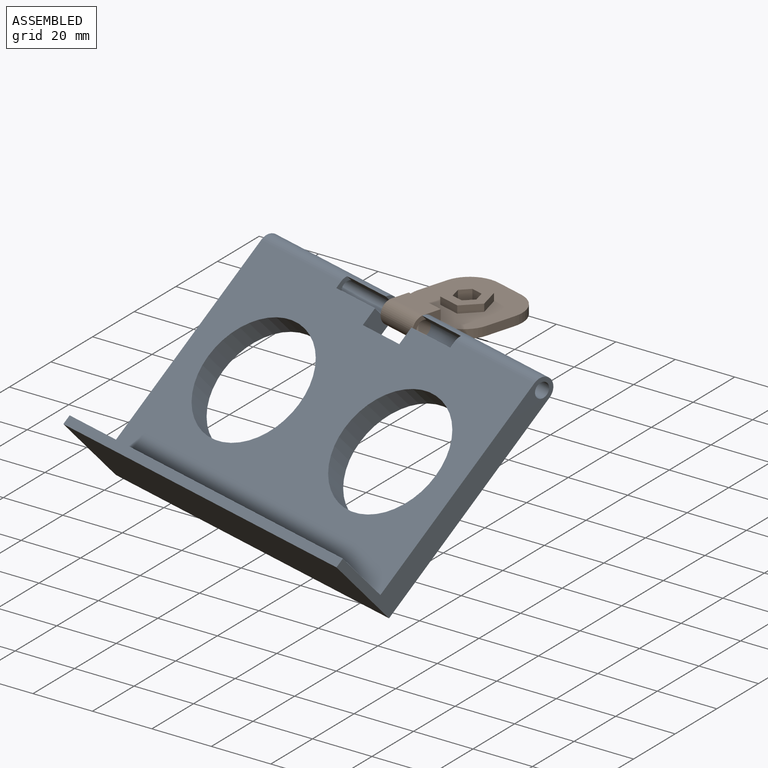
[diagram: assembled view]
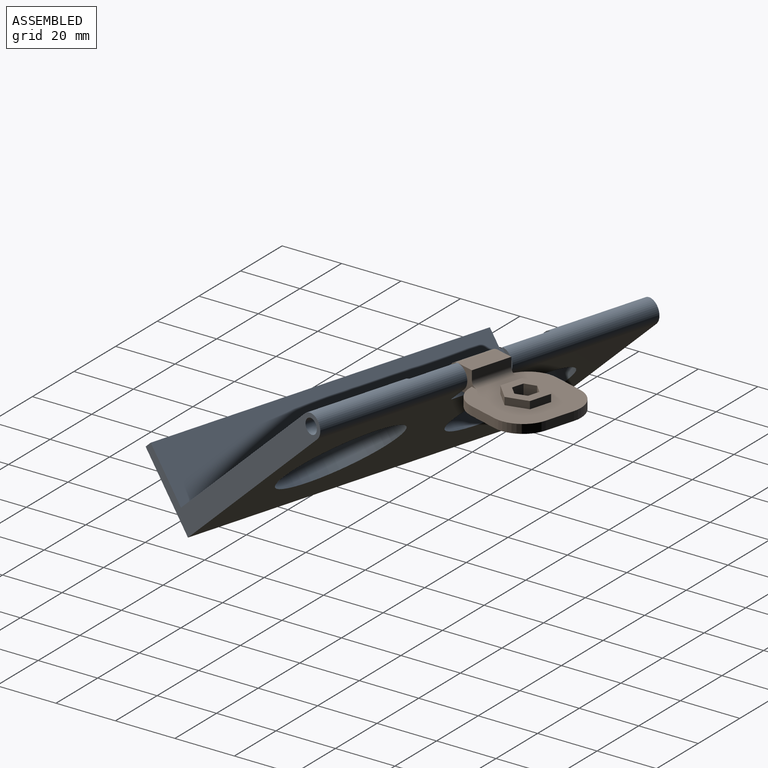
[diagram: assembled view, second angle]
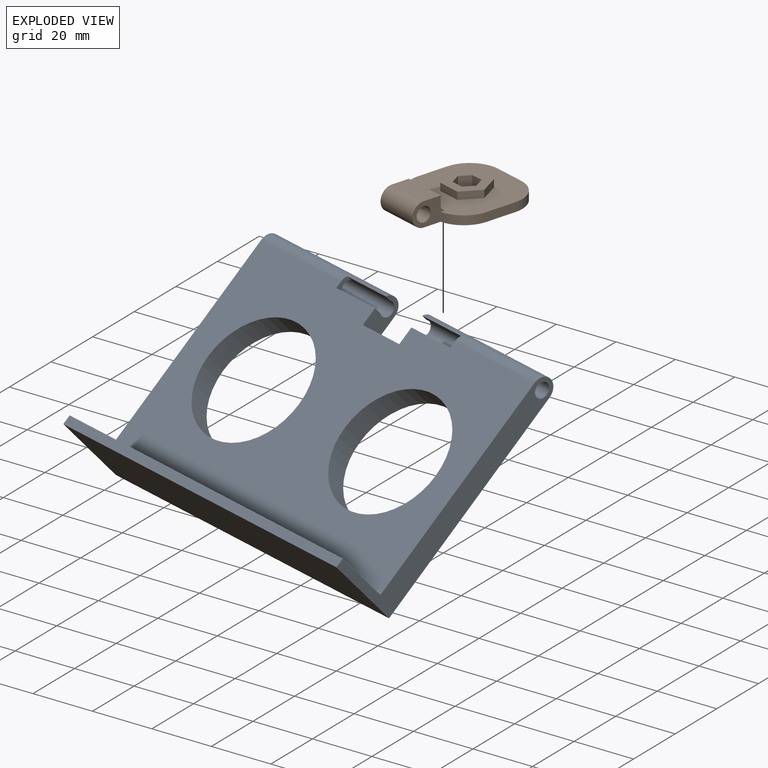
[diagram: exploded view]
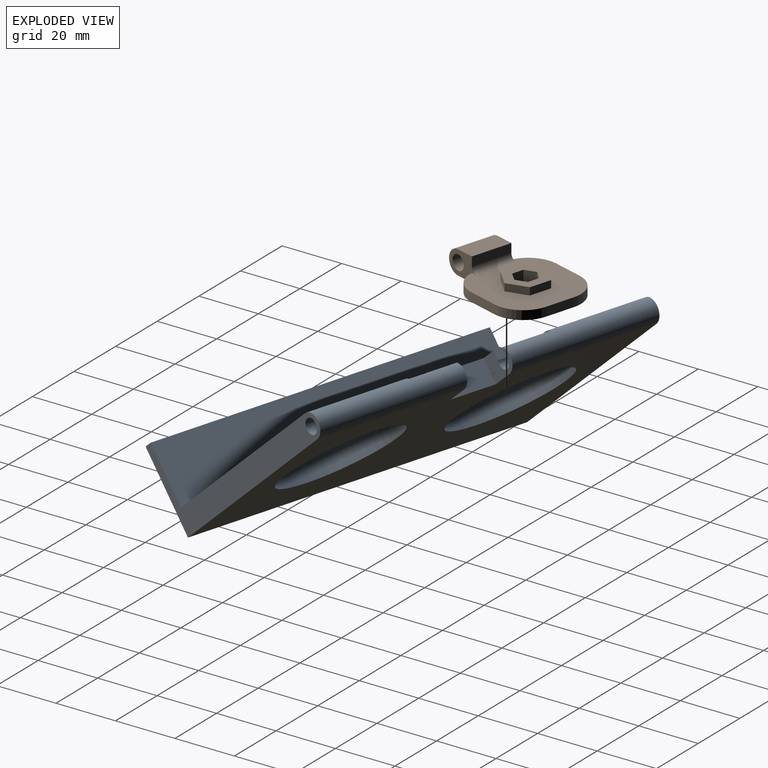
[diagram: exploded view, second angle]
ASSEMBLY  parts=2 mates=2
PART A: 22 faces, bbox 120x80x28 mm
  f0: cylinder r=4mm len=52mm, axis (1,0,0), area 612.8mm2, adj f2,f3,f6,f7,f16,f17
  f1: cylinder r=4mm len=52mm, axis (1,0,0), area 612.8mm2, adj f2,f3,f4,f9,f19,f21
  f2: plane 120x73mm, normal (0,0,1), area 6042.2mm2, adj f0,f1,f4,f5,f6,f7,f9,f10
  f3: plane 120x76mm, normal (0,0,-1), area 6478.7mm2, adj f0,f1,f4,f5,f6,f7,f8,f9
  f4: plane 12x8mm, normal (-1,0,0), area 61.4mm2, adj f1,f2,f3,f5,f12,f20,f21
  f5: plane 16x8mm, normal (0,1,0), area 128mm2, adj f2,f3,f4,f6
  f6: plane 12x8mm, normal (1,0,0), area 61.4mm2, adj f0,f2,f3,f5,f13,f17,f18
  f7: plane 80x28mm, normal (-1,0,0), area 673.5mm2, adj f0,f2,f3,f8,f10,f11,f13
  f8: plane 120x28mm, normal (0,-1,0), area 3360mm2, adj f3,f7,f9,f11
  f9: plane 80x28mm, normal (1,0,0), area 673.5mm2, adj f1,f2,f3,f8,f10,f11,f12
  f10: plane 120x20mm, normal (0,1,0), area 2400mm2, adj f2,f7,f9,f11
  f11: plane 120x3mm, normal (0,0,1), area 360mm2, adj f7,f8,f9,f10
  f12: cylinder r=2.5mm len=52mm, axis (1,0,0), area 721.6mm2, adj f4,f9,f19,f20,f21
  f13: cylinder r=2.5mm len=52mm, axis (1,0,0), area 721.6mm2, adj f6,f7,f16,f17,f18
  f14: cylinder r=20mm len=40mm, axis (0,0,1), area 1005.3mm2, adj f2,f3
  f15: cylinder r=20mm len=40mm, axis (0,0,1), area 1005.3mm2, adj f2,f3
  f16: plane 4.5x2.91mm, normal (1,0,0), area 8mm2, adj f0,f2,f13,f17,f18
  f17: plane 17x2.22mm, normal (0,-1,0), area 37.7mm2, adj f0,f6,f13,f16
  f18: plane 17x2.91mm, normal (0,1,0), area 49.5mm2, adj f2,f6,f13,f16
  f19: plane 4.5x2.91mm, normal (-1,0,0), area 8mm2, adj f1,f2,f12,f20,f21
  f20: plane 17x2.91mm, normal (0,1,0), area 49.5mm2, adj f2,f4,f12,f19
  f21: plane 17x2.22mm, normal (0,-1,0), area 37.7mm2, adj f1,f4,f12,f19
PART B: 31 faces, bbox 30x40x8 mm
  f0: plane 14x6mm, normal (0,0,1), area 84mm2, adj f2,f4,f24,f25
  f1: plane 10.2x3mm, normal (1,0,0), area 30.6mm2, adj f6,f9,f27,f30
  f2: cylinder r=4mm len=14mm, axis (-1,0,0), area 175.9mm2, adj f0,f6,f24,f25
  f3: cylinder r=2.5mm len=14mm, axis (-1,0,0), area 219.9mm2, adj f24,f25
  f4: plane 14x3mm, normal (0,-1,0), area 42mm2, adj f0,f24,f25,f26
  f5: plane 10.2x3mm, normal (-1,0,0), area 30.6mm2, adj f6,f9,f28,f29
  f6: plane 36x30mm, normal (0,0,-1), area 868.5mm2, adj f1,f2,f5,f7,f8,f24,f25,f27
  f7: cylinder r=3.25mm len=6.5mm, axis (0,0,-1), area 10.2mm2, adj f6,f16
  f8: plane 10x3mm, normal (0,-1,0), area 30mm2, adj f6,f9,f29,f30
  f9: plane 30x30mm, normal (0,0,1), area 643.3mm2, adj f1,f5,f8,f17,f18,f19,f20,f21
  f10: plane 5x4.04mm, normal (0,-1,0), area 20.2mm2, adj f11,f15,f16,f23
  f11: plane 5x3.5mm, normal (0.87,-0.5,0), area 20.2mm2, adj f10,f12,f16,f23
  f12: plane 5x3.5mm, normal (0.87,0.5,0), area 20.2mm2, adj f11,f13,f16,f23
  f13: plane 5x4.04mm, normal (0,1,0), area 20.2mm2, adj f12,f14,f16,f23
  f14: plane 5x3.5mm, normal (-0.87,0.5,0), area 20.2mm2, adj f13,f15,f16,f23
  f15: plane 5x3.5mm, normal (-0.87,-0.5,0), area 20.2mm2, adj f10,f14,f16,f23
  f16: plane 8.08x7mm, normal (0,0,1), area 9.3mm2, adj f7,f10,f11,f12,f13,f14,f15
  f17: plane 6.5x3.75mm, normal (0.87,0.5,0), area 18.8mm2, adj f9,f18,f22,f23
  f18: plane 7.51x2.5mm, normal (0,1,0), area 18.8mm2, adj f9,f17,f19,f23
  f19: plane 6.5x3.75mm, normal (-0.87,0.5,0), area 18.8mm2, adj f9,f18,f20,f23
  f20: plane 6.5x3.75mm, normal (-0.87,-0.5,0), area 18.8mm2, adj f9,f19,f21,f23
  f21: plane 7.51x2.5mm, normal (0,-1,0), area 18.8mm2, adj f9,f20,f22,f23
  f22: plane 6.5x3.75mm, normal (0.87,-0.5,0), area 18.8mm2, adj f9,f17,f21,f23
  f23: plane 15.01x13mm, normal (0,0,1), area 103.9mm2, adj f10,f11,f12,f13,f14,f15,f17,f18
  f24: plane 12x8mm, normal (-1,0,0), area 54.4mm2, adj f0,f2,f3,f4,f6,f9,f26,f28
  f25: plane 12x8mm, normal (1,0,0), area 54.4mm2, adj f0,f2,f3,f4,f6,f9,f26,f27
  f26: cylinder r=2mm len=14mm, axis (1,0,0), area 44mm2, adj f4,f9,f24,f25
  f27: cylinder r=10mm len=9.8mm, axis (0,0,1), area 41.1mm2, adj f1,f6,f9,f25
  f28: cylinder r=10mm len=9.8mm, axis (0,0,-1), area 41.1mm2, adj f5,f6,f9,f24
  f29: cylinder r=10mm len=10mm, axis (0,0,-1), area 47.1mm2, adj f5,f6,f8,f9
  f30: cylinder r=10mm len=10mm, axis (0,0,1), area 47.1mm2, adj f1,f6,f8,f9
PLACE A rot(axis=(0.93,-0.13,-0.35),44.5deg) t=(-13.55,-43.18,-27.91)mm
PLACE B rot(axis=(0,0,1),163.8deg) t=(0,0,-5)mm fixed
MATE cylindrical B.f2 <-> A.f1  axis (0.96,-0.28,0) through (0.88,-22.12,-1)mm
MATE planar B.f24 <-> A.f4  axis (0.96,-0.28,0) through (1.43,-20.23,-1.01)mm
